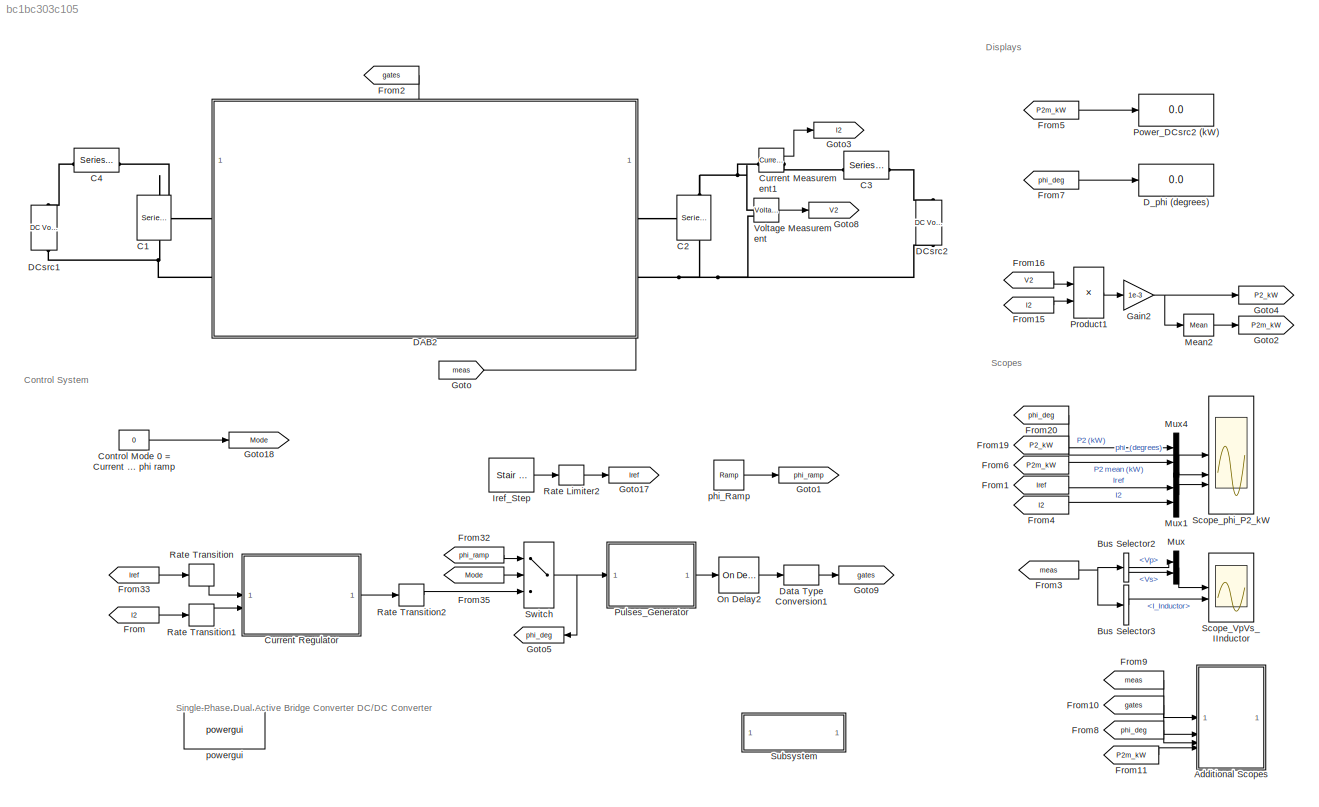
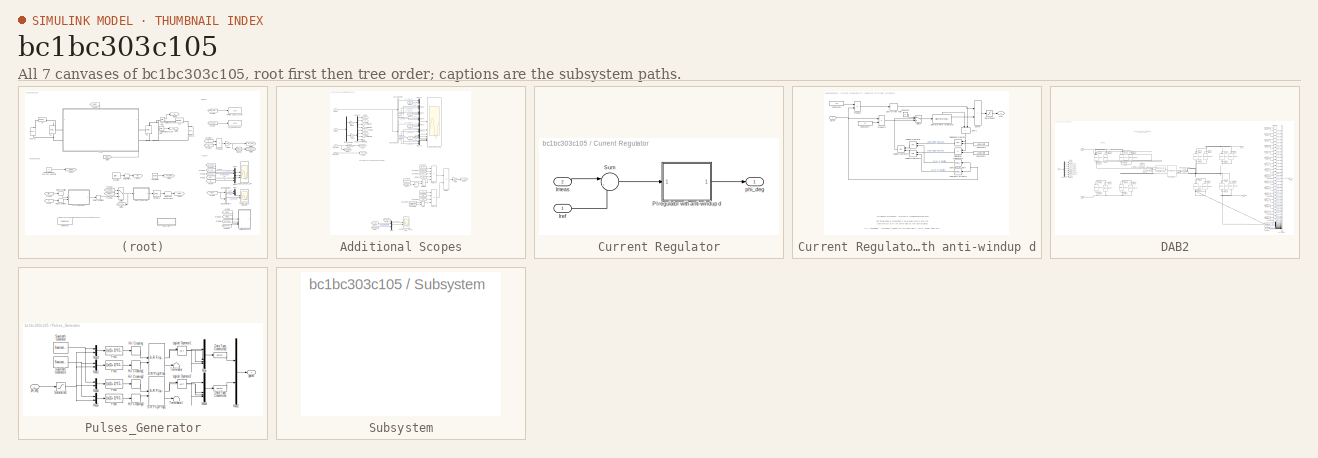
[diagram: thumbnail index - all 7 canvases of the model, root first then tree order]
MODEL slx_bc1bc303c105
KIND model
CONFIG AbsTol = auto
CONFIG EnableMultiTasking = on
CONFIG FixedStep = auto
CONFIG MaxStep = 1e-3
CONFIG MinStep = auto
CONFIG PreLoadFcn = power_converters_DAB_1ph_Data\n
CONFIG RelTol = 1e-3
CONFIG SampleTimeConstraint = Unconstrained
CONFIG SolverName = ode23tb
CONFIG StartTime = 0.0
CONFIG StopTime = 0.04
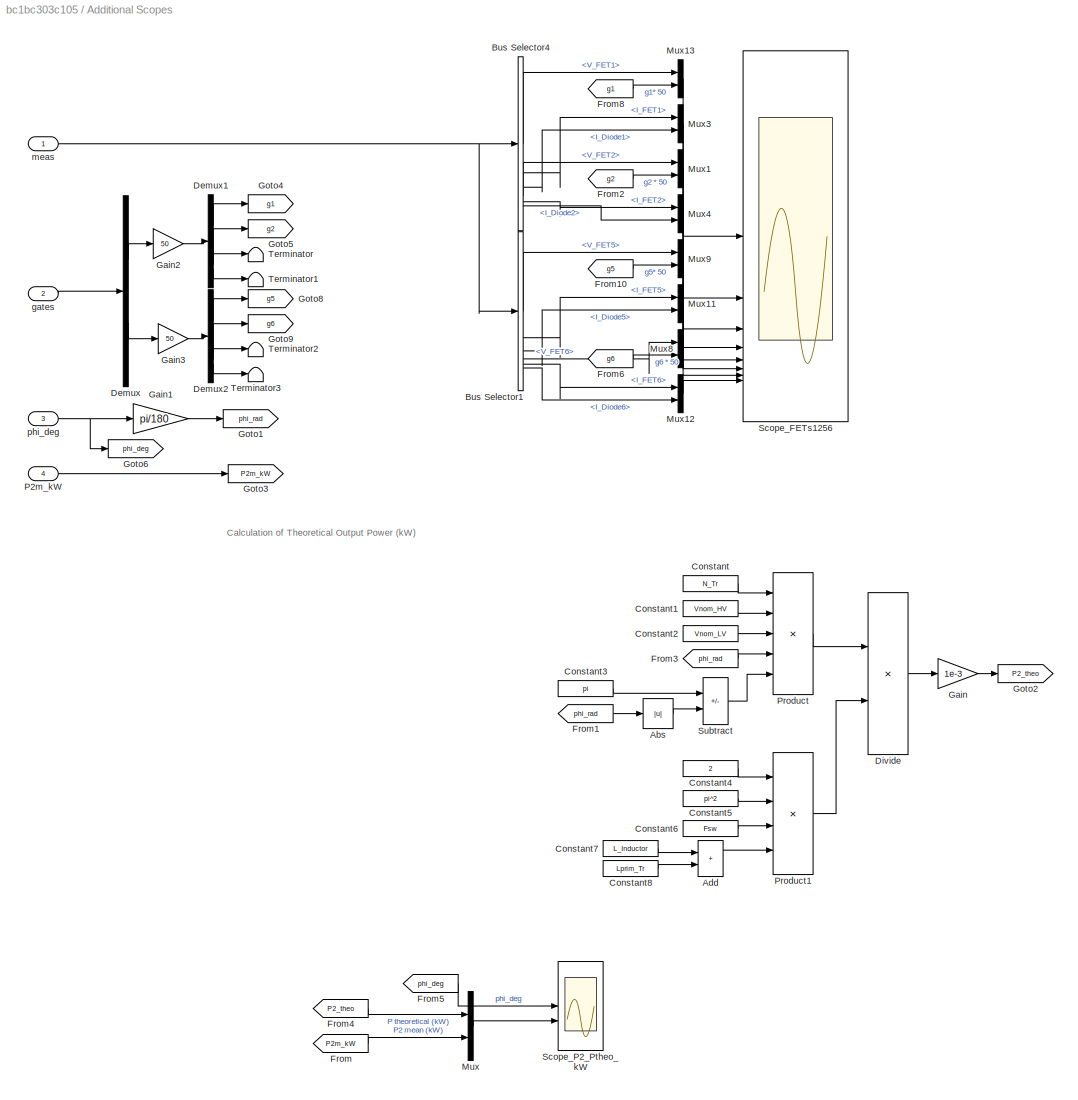
BLOCK [SubSystem] Additional Scopes
BLOCK [Abs] Additional Scopes/Abs
  SaturateOnIntegerOverflow = off
BLOCK [Sum] Additional Scopes/Add
  IconShape = rectangular
BLOCK [BusSelector] Additional Scopes/Bus Selector1
  OutputSignals = V_FET5,I_FET5,I_Diode5,V_FET6,I_FET6,I_Diode6
BLOCK [BusSelector] Additional Scopes/Bus Selector4
  OutputSignals = V_FET1,I_FET1,I_Diode1,V_FET2,I_FET2,I_Diode2
BLOCK [Constant] Additional Scopes/Constant
  Value = N_Tr
BLOCK [Constant] Additional Scopes/Constant1
  Value = Vnom_HV
BLOCK [Constant] Additional Scopes/Constant2
  Value = Vnom_LV
BLOCK [Constant] Additional Scopes/Constant3
  Value = pi
BLOCK [Constant] Additional Scopes/Constant4
  Value = 2
BLOCK [Constant] Additional Scopes/Constant5
  Value = pi^2
BLOCK [Constant] Additional Scopes/Constant6
  Value = Fsw
BLOCK [Constant] Additional Scopes/Constant7
  Value = L_Inductor
BLOCK [Constant] Additional Scopes/Constant8
  Value = Lprim_Tr
BLOCK [Demux] Additional Scopes/Demux
  Outputs = [4,4]
BLOCK [Demux] Additional Scopes/Demux1
BLOCK [Demux] Additional Scopes/Demux2
BLOCK [Product] Additional Scopes/Divide
  Inputs = */
BLOCK [From] Additional Scopes/From
  GotoTag = P2m_kW
BLOCK [From] Additional Scopes/From1
  GotoTag = phi_rad
BLOCK [From] Additional Scopes/From10
  GotoTag = g5
BLOCK [From] Additional Scopes/From2
  GotoTag = g2
BLOCK [From] Additional Scopes/From3
  GotoTag = phi_rad
BLOCK [From] Additional Scopes/From4
  GotoTag = P2_theo
BLOCK [From] Additional Scopes/From5
  GotoTag = phi_deg
BLOCK [From] Additional Scopes/From6
  GotoTag = g6
BLOCK [From] Additional Scopes/From8
  GotoTag = g1
BLOCK [Gain] Additional Scopes/Gain
  Gain = 1e-3
BLOCK [Gain] Additional Scopes/Gain1
  Gain = pi/180
BLOCK [Gain] Additional Scopes/Gain2
  Gain = 50
BLOCK [Gain] Additional Scopes/Gain3
  Gain = 50
BLOCK [Goto] Additional Scopes/Goto1
  GotoTag = phi_rad
BLOCK [Goto] Additional Scopes/Goto2
  GotoTag = P2_theo
BLOCK [Goto] Additional Scopes/Goto3
  GotoTag = P2m_kW
BLOCK [Goto] Additional Scopes/Goto4
  GotoTag = g1
BLOCK [Goto] Additional Scopes/Goto5
  GotoTag = g2
BLOCK [Goto] Additional Scopes/Goto6
  GotoTag = phi_deg
BLOCK [Goto] Additional Scopes/Goto8
  GotoTag = g5
BLOCK [Goto] Additional Scopes/Goto9
  GotoTag = g6
BLOCK [Mux] Additional Scopes/Mux
  DisplayOption = bar
  Inputs = 2
BLOCK [Mux] Additional Scopes/Mux1
  DisplayOption = bar
  Inputs = 2
BLOCK [Mux] Additional Scopes/Mux11
  DisplayOption = bar
  Inputs = 2
BLOCK [Mux] Additional Scopes/Mux12
  DisplayOption = bar
  Inputs = 2
BLOCK [Mux] Additional Scopes/Mux13
  DisplayOption = bar
  Inputs = 2
BLOCK [Mux] Additional Scopes/Mux3
  DisplayOption = bar
  Inputs = 2
BLOCK [Mux] Additional Scopes/Mux4
  DisplayOption = bar
  Inputs = 2
BLOCK [Mux] Additional Scopes/Mux8
  DisplayOption = bar
  Inputs = 2
BLOCK [Mux] Additional Scopes/Mux9
  DisplayOption = bar
  Inputs = 2
BLOCK [Inport] Additional Scopes/P2m_kW
  Port = 4
BLOCK [Product] Additional Scopes/Product
  Inputs = 5
BLOCK [Product] Additional Scopes/Product1
  Inputs = 4
BLOCK [Scope] Additional Scopes/Scope_FETs1256
  Floating = off
  NumInputPorts = 8
  ScopeSpecificationString = Simulink.scopes.TimeScopeBlockCfg('CurrentConfiguration', extmgr.ConfigurationSet(extmgr.Configuration('Core','General UI',true),extmgr.Configuration('Core','Source UI',true),extmgr.Configuration('Sources','WiredSimulink',true,'DataLoggingVariableName','ScopeData_FETs1256','DataLoggingDecimateData',true,'DataLoggingDecimation','Scope_Decimation','DataLoggingSaveFormat','StructureWithTime','DataLog...<+6682ch>
BLOCK [Scope] Additional Scopes/Scope_P2_Ptheo_kW
  Floating = off
  NumInputPorts = 2
  ScopeSpecificationString = Simulink.scopes.TimeScopeBlockCfg('CurrentConfiguration', extmgr.ConfigurationSet(extmgr.Configuration('Core','General UI',true),extmgr.Configuration('Core','Source UI',true),extmgr.Configuration('Sources','WiredSimulink',true,'DataLoggingVariableName','Scope_phi_Ptheo_P2_kW','DataLoggingDecimateData',true,'DataLoggingDecimation','Scope_Decimation','DataLoggingSaveFormat','StructureWithTime','Data...<+2356ch>
BLOCK [Sum] Additional Scopes/Subtract
  IconShape = rectangular
  Inputs = +-
BLOCK [Terminator] Additional Scopes/Terminator
BLOCK [Terminator] Additional Scopes/Terminator1
BLOCK [Terminator] Additional Scopes/Terminator2
BLOCK [Terminator] Additional Scopes/Terminator3
BLOCK [Inport] Additional Scopes/gates
  Port = 2
BLOCK [Inport] Additional Scopes/meas
BLOCK [Inport] Additional Scopes/phi_deg
  Port = 3
BLOCK [BusSelector] Bus Selector2
  OutputSignals = Vp,Vs
BLOCK [BusSelector] Bus Selector3
  OutputSignals = I_Inductor
BLOCK [Reference] C1  REF=spsSeriesRLCBranchLib/Series RLC Branch
  NameLocation = left
  SourceBlock = spsSeriesRLCBranchLib/Series RLC Branch
  SourceType = Series RLC Branch
BLOCK [Reference] C2  REF=spsSeriesRLCBranchLib/Series RLC Branch
  NameLocation = left
  SourceBlock = spsSeriesRLCBranchLib/Series RLC Branch
  SourceType = Series RLC Branch
BLOCK [Reference] C3  REF=spsSeriesRLCBranchLib/Series RLC Branch
  NameLocation = top
  SourceBlock = spsSeriesRLCBranchLib/Series RLC Branch
  SourceType = Series RLC Branch
BLOCK [Reference] C4  REF=spsSeriesRLCBranchLib/Series RLC Branch
  NameLocation = top
  SourceBlock = spsSeriesRLCBranchLib/Series RLC Branch
  SourceType = Series RLC Branch
BLOCK [Constant] Control Mode 0 = Current Regulator 1 = phi ramp
  Value = 0
BLOCK [Reference] Current Measurement1  REF=spsCurrentMeasurementLib/Current Measurement
  SourceBlock = spsCurrentMeasurementLib/Current Measurement
  SourceType = Current Measurement
  UserDataPersistent = on
BLOCK [SubSystem] Current Regulator
BLOCK [Inport] Current Regulator/Imeas
  NameLocation = top
  Port = 2
BLOCK [Inport] Current Regulator/Iref
BLOCK [SubSystem] Current Regulator/PI regulator with anti-windup d
  DialogController = POWERSYS.PowerSysDialog
BLOCK [Reference] Current Regulator/PI regulator with anti-windup d/Compare To Zero  REF=simulink/Logic and Bit
Operations/Compare
To Zero
  SourceBlock = simulink/Logic and Bit\nOperations/Compare\nTo Zero
  SourceType = Compare To Zero
BLOCK [Reference] Current Regulator/PI regulator with anti-windup d/Compare To Zero1  REF=simulink/Logic and Bit
Operations/Compare
To Zero
  SourceBlock = simulink/Logic and Bit\nOperations/Compare\nTo Zero
  SourceType = Compare To Zero
BLOCK [Constant] Current Regulator/PI regulator with anti-windup d/Constant
  Value = 0
BLOCK [Constant] Current Regulator/PI regulator with anti-windup d/Constant1
  Value = UpperLimit
BLOCK [Constant] Current Regulator/PI regulator with anti-windup d/Constant2
  SampleTime = Ts
  Value = Kp
BLOCK [Constant] Current Regulator/PI regulator with anti-windup d/Constant3
  Value = LowerLimit
BLOCK [Constant] Current Regulator/PI regulator with anti-windup d/Constant4
  SampleTime = Ts
  Value = Ki
BLOCK [DiscreteIntegrator] Current Regulator/PI regulator with anti-windup d/Discrete-Time Integrator
  ICPrevOutput = DiscIntNeverNeededParam
  ICPrevScaledInput = DiscIntNeverNeededParam
  InitialCondition = Init
  IntegratorMethod = Integration: Trapezoidal
  LimitOutput = on
  LowerSaturationLimit = LowerLimit
  SampleTime = Ts
  ShowStatePort = on
  UpperSaturationLimit = UpperLimit
BLOCK [Inport] Current Regulator/PI regulator with anti-windup d/Error
  SampleTime = Ts
BLOCK [Logic] Current Regulator/PI regulator with anti-windup d/Logical Operator
  AllPortsSameDT = off
  OutDataTypeStr = boolean
BLOCK [Logic] Current Regulator/PI regulator with anti-windup d/Logical Operator1
  AllPortsSameDT = off
  OutDataTypeStr = boolean
BLOCK [Logic] Current Regulator/PI regulator with anti-windup d/Logical Operator2
  AllPortsSameDT = off
  Operator = OR
  OutDataTypeStr = boolean
BLOCK [Outport] Current Regulator/PI regulator with anti-windup d/Out
  InitialOutput = 0
  SampleTime = Ts
  VectorParamsAs1DForOutWhenUnconnected = off
BLOCK [Product] Current Regulator/PI regulator with anti-windup d/Product
BLOCK [Product] Current Regulator/PI regulator with anti-windup d/Product1
BLOCK [RelationalOperator] Current Regulator/PI regulator with anti-windup d/Relational Operator
  InputSameDT = off
  OutDataTypeStr = boolean
BLOCK [RelationalOperator] Current Regulator/PI regulator with anti-windup d/Relational Operator1
  InputSameDT = off
  Operator = <=
  OutDataTypeStr = boolean
BLOCK [Saturate] Current Regulator/PI regulator with anti-windup d/Saturation2
  LowerLimit = LowerLimit
  NameLocation = top
  SampleTime = Ts
  UpperLimit = UpperLimit
BLOCK [Sum] Current Regulator/PI regulator with anti-windup d/Sum1
  IconShape = rectangular
  InputSameDT = on
  NameLocation = left
  OutDataTypeStr = Inherit: Same as first input
  SampleTime = Ts
  SaturateOnIntegerOverflow = on
BLOCK [Sum] Current Regulator/PI regulator with anti-windup d/Sum6
  IconShape = rectangular
  InputSameDT = on
  OutDataTypeStr = Inherit: Same as first input
  SampleTime = Ts
  SaturateOnIntegerOverflow = on
BLOCK [Switch] Current Regulator/PI regulator with anti-windup d/Switch
  Criteria = u2 > Threshold
  InputSameDT = off
  SaturateOnIntegerOverflow = off
BLOCK [ZeroOrderHold] Current Regulator/PI regulator with anti-windup d/Zero-Order Hold
  SampleTime = Ts
BLOCK [Sum] Current Regulator/Sum
  Inputs = |-+
  NameLocation = top
BLOCK [Outport] Current Regulator/phi_deg
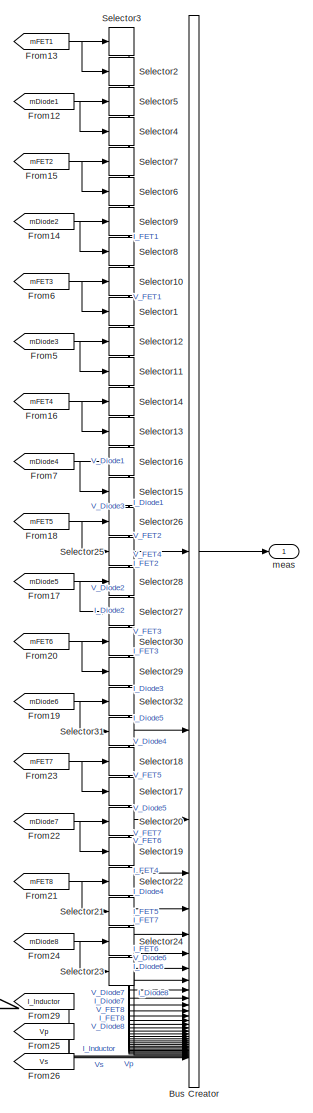
[diagram: DAB2 - part 1/3, right side, full height]
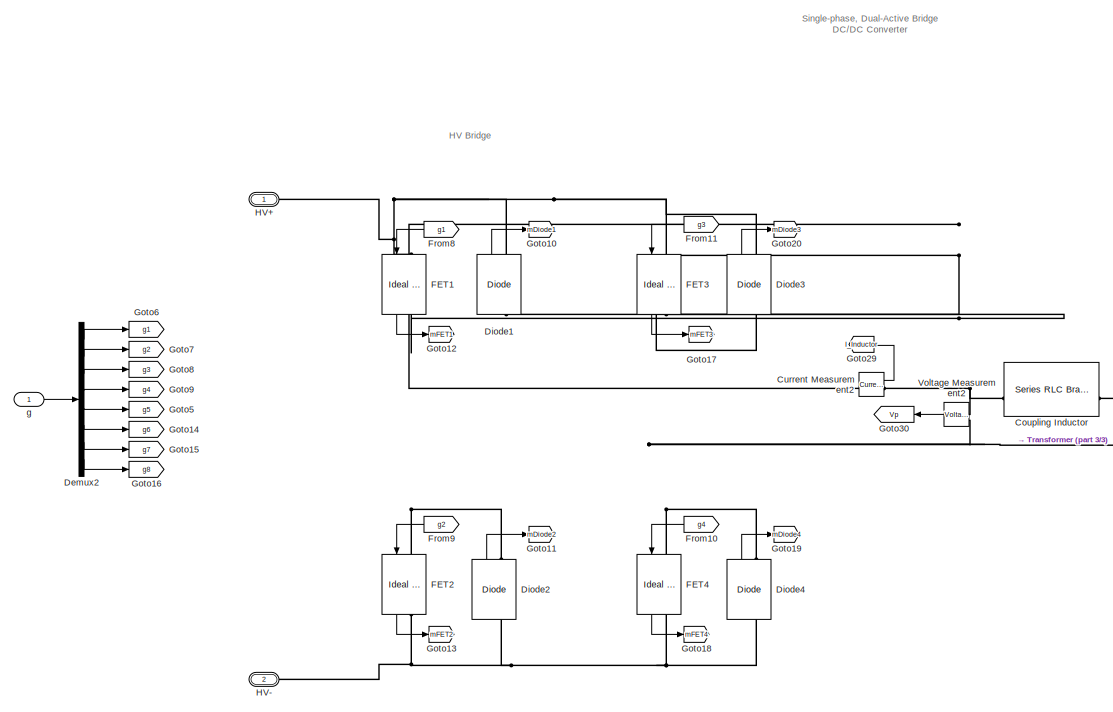
[diagram: DAB2 - part 2/3, middle left region]
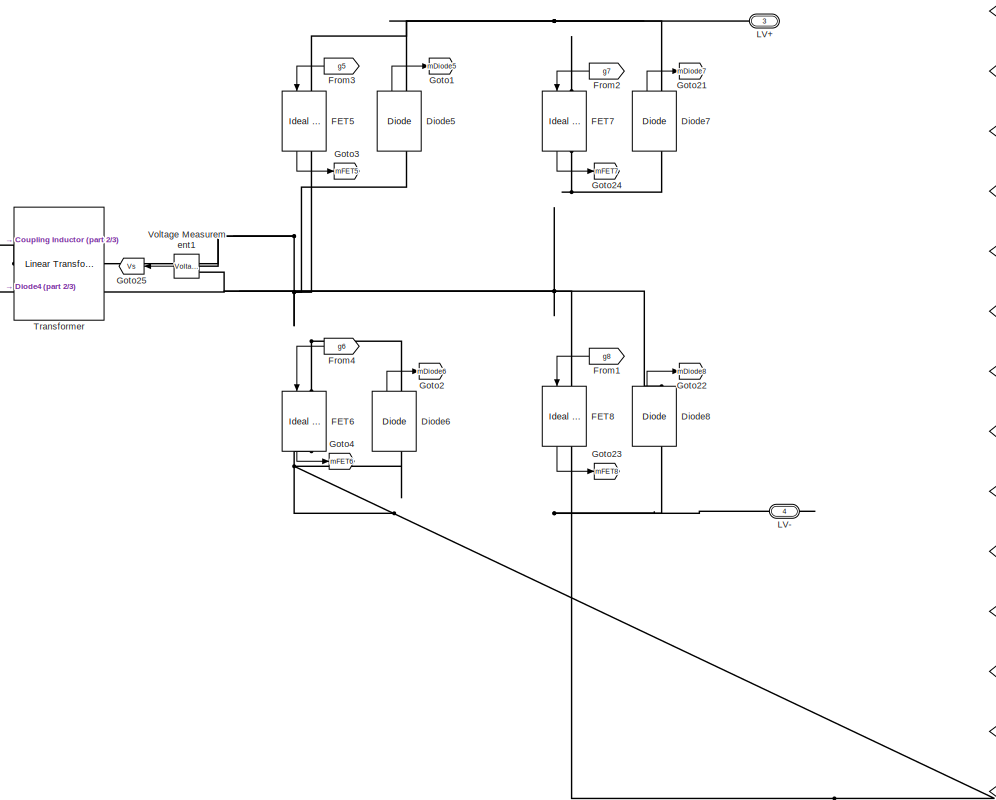
[diagram: DAB2 - part 3/3, middle right region]
BLOCK [SubSystem] DAB2
  NameLocation = left
  PortSchema = {"entries":[{"content":{"sides":[{"content":{"connectorIds":["LConn1","LConn2"]},"type":"ConnectorPlacement.EquallySpacedRectSide","uuid":"9324ea44-499c-4ecb-9e49-362befe9c555"},{"content":{"connectorIds":["RConn1","RConn2"],"side":"RIGHT"},"type":"ConnectorPlacement.EquallySpacedRectSide","uuid":"1d2d188e-4a2f-457a-9d2e-cac68811a3aa"},{"content":{"connectorIds":["In1"],"side":"TOP"},"type":"Conne...<+418ch>
BLOCK [BusCreator] DAB2/Bus Creator
  DisplayOption = bar
  InheritFromInputs = on
  Inputs = 35
BLOCK [Reference] DAB2/Coupling Inductor  REF=spsSeriesRLCBranchLib/Series RLC Branch
  NameLocation = top
  SourceBlock = spsSeriesRLCBranchLib/Series RLC Branch
  SourceType = Series RLC Branch
BLOCK [Reference] DAB2/Current Measurement2  REF=spsCurrentMeasurementLib/Current Measurement
  SourceBlock = spsCurrentMeasurementLib/Current Measurement
  SourceType = Current Measurement
  UserDataPersistent = on
BLOCK [Demux] DAB2/Demux2
  Outputs = 8
BLOCK [Reference] DAB2/Diode1  REF=spsDiodeLib/Diode
  NameLocation = left
  SourceBlock = spsDiodeLib/Diode
  SourceType = Diode
BLOCK [Reference] DAB2/Diode2  REF=spsDiodeLib/Diode
  NameLocation = left
  SourceBlock = spsDiodeLib/Diode
  SourceType = Diode
BLOCK [Reference] DAB2/Diode3  REF=spsDiodeLib/Diode
  NameLocation = left
  SourceBlock = spsDiodeLib/Diode
  SourceType = Diode
BLOCK [Reference] DAB2/Diode4  REF=spsDiodeLib/Diode
  NameLocation = left
  SourceBlock = spsDiodeLib/Diode
  SourceType = Diode
BLOCK [Reference] DAB2/Diode5  REF=spsDiodeLib/Diode
  NameLocation = left
  SourceBlock = spsDiodeLib/Diode
  SourceType = Diode
BLOCK [Reference] DAB2/Diode6  REF=spsDiodeLib/Diode
  NameLocation = left
  SourceBlock = spsDiodeLib/Diode
  SourceType = Diode
BLOCK [Reference] DAB2/Diode7  REF=spsDiodeLib/Diode
  NameLocation = left
  SourceBlock = spsDiodeLib/Diode
  SourceType = Diode
BLOCK [Reference] DAB2/Diode8  REF=spsDiodeLib/Diode
  NameLocation = left
  SourceBlock = spsDiodeLib/Diode
  SourceType = Diode
BLOCK [Reference] DAB2/FET1  REF=spsIdealSwitchLib/Ideal Switch
  NameLocation = left
  SourceBlock = spsIdealSwitchLib/Ideal Switch
  SourceType = Ideal Switch
BLOCK [Reference] DAB2/FET2  REF=spsIdealSwitchLib/Ideal Switch
  NameLocation = left
  SourceBlock = spsIdealSwitchLib/Ideal Switch
  SourceType = Ideal Switch
BLOCK [Reference] DAB2/FET3  REF=spsIdealSwitchLib/Ideal Switch
  NameLocation = left
  SourceBlock = spsIdealSwitchLib/Ideal Switch
  SourceType = Ideal Switch
BLOCK [Reference] DAB2/FET4  REF=spsIdealSwitchLib/Ideal Switch
  NameLocation = left
  SourceBlock = spsIdealSwitchLib/Ideal Switch
  SourceType = Ideal Switch
BLOCK [Reference] DAB2/FET5  REF=spsIdealSwitchLib/Ideal Switch
  NameLocation = left
  SourceBlock = spsIdealSwitchLib/Ideal Switch
  SourceType = Ideal Switch
BLOCK [Reference] DAB2/FET6  REF=spsIdealSwitchLib/Ideal Switch
  NameLocation = left
  SourceBlock = spsIdealSwitchLib/Ideal Switch
  SourceType = Ideal Switch
BLOCK [Reference] DAB2/FET7  REF=spsIdealSwitchLib/Ideal Switch
  NameLocation = left
  SourceBlock = spsIdealSwitchLib/Ideal Switch
  SourceType = Ideal Switch
BLOCK [Reference] DAB2/FET8  REF=spsIdealSwitchLib/Ideal Switch
  NameLocation = left
  SourceBlock = spsIdealSwitchLib/Ideal Switch
  SourceType = Ideal Switch
BLOCK [From] DAB2/From1
  GotoTag = g8
BLOCK [From] DAB2/From10
  GotoTag = g4
BLOCK [From] DAB2/From11
  GotoTag = g3
BLOCK [From] DAB2/From12
  GotoTag = mDiode1
BLOCK [From] DAB2/From13
  GotoTag = mFET1
BLOCK [From] DAB2/From14
  GotoTag = mDiode2
BLOCK [From] DAB2/From15
  GotoTag = mFET2
BLOCK [From] DAB2/From16
  GotoTag = mFET4
BLOCK [From] DAB2/From17
  GotoTag = mDiode5
BLOCK [From] DAB2/From18
  GotoTag = mFET5
BLOCK [From] DAB2/From19
  GotoTag = mDiode6
BLOCK [From] DAB2/From2
  GotoTag = g7
BLOCK [From] DAB2/From20
  GotoTag = mFET6
BLOCK [From] DAB2/From21
  GotoTag = mFET8
BLOCK [From] DAB2/From22
  GotoTag = mDiode7
BLOCK [From] DAB2/From23
  GotoTag = mFET7
BLOCK [From] DAB2/From24
  GotoTag = mDiode8
BLOCK [From] DAB2/From25
  GotoTag = Vp
BLOCK [From] DAB2/From26
  GotoTag = Vs
  NameLocation = top
BLOCK [From] DAB2/From29
  GotoTag = I_Inductor
BLOCK [From] DAB2/From3
  GotoTag = g5
BLOCK [From] DAB2/From4
  GotoTag = g6
BLOCK [From] DAB2/From5
  GotoTag = mDiode3
BLOCK [From] DAB2/From6
  GotoTag = mFET3
BLOCK [From] DAB2/From7
  GotoTag = mDiode4
BLOCK [From] DAB2/From8
  GotoTag = g1
BLOCK [From] DAB2/From9
  GotoTag = g2
BLOCK [Goto] DAB2/Goto1
  GotoTag = mDiode5
BLOCK [Goto] DAB2/Goto10
  GotoTag = mDiode1
BLOCK [Goto] DAB2/Goto11
  GotoTag = mDiode2
BLOCK [Goto] DAB2/Goto12
  GotoTag = mFET1
BLOCK [Goto] DAB2/Goto13
  GotoTag = mFET2
BLOCK [Goto] DAB2/Goto14
  GotoTag = g6
BLOCK [Goto] DAB2/Goto15
  GotoTag = g7
BLOCK [Goto] DAB2/Goto16
  GotoTag = g8
BLOCK [Goto] DAB2/Goto17
  GotoTag = mFET3
BLOCK [Goto] DAB2/Goto18
  GotoTag = mFET4
BLOCK [Goto] DAB2/Goto19
  GotoTag = mDiode4
BLOCK [Goto] DAB2/Goto2
  GotoTag = mDiode6
BLOCK [Goto] DAB2/Goto20
  GotoTag = mDiode3
BLOCK [Goto] DAB2/Goto21
  GotoTag = mDiode7
BLOCK [Goto] DAB2/Goto22
  GotoTag = mDiode8
BLOCK [Goto] DAB2/Goto23
  GotoTag = mFET8
BLOCK [Goto] DAB2/Goto24
  GotoTag = mFET7
BLOCK [Goto] DAB2/Goto25
  GotoTag = Vs
BLOCK [Goto] DAB2/Goto29
  GotoTag = I_Inductor
BLOCK [Goto] DAB2/Goto3
  GotoTag = mFET5
BLOCK [Goto] DAB2/Goto30
  GotoTag = Vp
BLOCK [Goto] DAB2/Goto4
  GotoTag = mFET6
BLOCK [Goto] DAB2/Goto5
  GotoTag = g5
BLOCK [Goto] DAB2/Goto6
  GotoTag = g1
BLOCK [Goto] DAB2/Goto7
  GotoTag = g2
BLOCK [Goto] DAB2/Goto8
  GotoTag = g3
BLOCK [Goto] DAB2/Goto9
  GotoTag = g4
BLOCK [PMIOPort] DAB2/HV+
  Side = Left
BLOCK [PMIOPort] DAB2/HV-
  Port = 2
  Side = Left
BLOCK [PMIOPort] DAB2/LV+
  Port = 3
  Side = Right
BLOCK [PMIOPort] DAB2/LV-
  Port = 4
  Side = Right
BLOCK [Selector] DAB2/Selector1
  IndexOptions = Index vector (dialog)
  Indices = 1
  InputPortWidth = 2
  OutputSizes = 1
BLOCK [Selector] DAB2/Selector10
  IndexOptions = Index vector (dialog)
  Indices = 2
  InputPortWidth = 2
  OutputSizes = 1
BLOCK [Selector] DAB2/Selector11
  IndexOptions = Index vector (dialog)
  Indices = 1
  InputPortWidth = 2
  OutputSizes = 1
BLOCK [Selector] DAB2/Selector12
  IndexOptions = Index vector (dialog)
  Indices = 2
  InputPortWidth = 2
  OutputSizes = 1
BLOCK [Selector] DAB2/Selector13
  IndexOptions = Index vector (dialog)
  Indices = 1
  InputPortWidth = 2
  OutputSizes = 1
BLOCK [Selector] DAB2/Selector14
  IndexOptions = Index vector (dialog)
  Indices = 2
  InputPortWidth = 2
  OutputSizes = 1
BLOCK [Selector] DAB2/Selector15
  IndexOptions = Index vector (dialog)
  Indices = 1
  InputPortWidth = 2
  OutputSizes = 1
BLOCK [Selector] DAB2/Selector16
  IndexOptions = Index vector (dialog)
  Indices = 2
  InputPortWidth = 2
  OutputSizes = 1
BLOCK [Selector] DAB2/Selector17
  IndexOptions = Index vector (dialog)
  Indices = 1
  InputPortWidth = 2
  OutputSizes = 1
BLOCK [Selector] DAB2/Selector18
  IndexOptions = Index vector (dialog)
  Indices = 2
  InputPortWidth = 2
  OutputSizes = 1
BLOCK [Selector] DAB2/Selector19
  IndexOptions = Index vector (dialog)
  Indices = 1
  InputPortWidth = 2
  OutputSizes = 1
BLOCK [Selector] DAB2/Selector2
  IndexOptions = Index vector (dialog)
  Indices = 1
  InputPortWidth = 2
  OutputSizes = 1
BLOCK [Selector] DAB2/Selector20
  IndexOptions = Index vector (dialog)
  Indices = 2
  InputPortWidth = 2
  OutputSizes = 1
BLOCK [Selector] DAB2/Selector21
  IndexOptions = Index vector (dialog)
  Indices = 1
  InputPortWidth = 2
  OutputSizes = 1
BLOCK [Selector] DAB2/Selector22
  IndexOptions = Index vector (dialog)
  Indices = 2
  InputPortWidth = 2
  OutputSizes = 1
BLOCK [Selector] DAB2/Selector23
  IndexOptions = Index vector (dialog)
  Indices = 1
  InputPortWidth = 2
  OutputSizes = 1
BLOCK [Selector] DAB2/Selector24
  IndexOptions = Index vector (dialog)
  Indices = 2
  InputPortWidth = 2
  OutputSizes = 1
BLOCK [Selector] DAB2/Selector25
  IndexOptions = Index vector (dialog)
  Indices = 1
  InputPortWidth = 2
  OutputSizes = 1
BLOCK [Selector] DAB2/Selector26
  IndexOptions = Index vector (dialog)
  Indices = 2
  InputPortWidth = 2
  OutputSizes = 1
BLOCK [Selector] DAB2/Selector27
  IndexOptions = Index vector (dialog)
  Indices = 1
  InputPortWidth = 2
  OutputSizes = 1
BLOCK [Selector] DAB2/Selector28
  IndexOptions = Index vector (dialog)
  Indices = 2
  InputPortWidth = 2
  OutputSizes = 1
BLOCK [Selector] DAB2/Selector29
  IndexOptions = Index vector (dialog)
  Indices = 1
  InputPortWidth = 2
  OutputSizes = 1
BLOCK [Selector] DAB2/Selector3
  IndexOptions = Index vector (dialog)
  Indices = 2
  InputPortWidth = 2
  OutputSizes = 1
BLOCK [Selector] DAB2/Selector30
  IndexOptions = Index vector (dialog)
  Indices = 2
  InputPortWidth = 2
  OutputSizes = 1
BLOCK [Selector] DAB2/Selector31
  IndexOptions = Index vector (dialog)
  Indices = 1
  InputPortWidth = 2
  OutputSizes = 1
BLOCK [Selector] DAB2/Selector32
  IndexOptions = Index vector (dialog)
  Indices = 2
  InputPortWidth = 2
  OutputSizes = 1
BLOCK [Selector] DAB2/Selector4
  IndexOptions = Index vector (dialog)
  Indices = 1
  InputPortWidth = 2
  OutputSizes = 1
BLOCK [Selector] DAB2/Selector5
  IndexOptions = Index vector (dialog)
  Indices = 2
  InputPortWidth = 2
  OutputSizes = 1
BLOCK [Selector] DAB2/Selector6
  IndexOptions = Index vector (dialog)
  Indices = 1
  InputPortWidth = 2
  OutputSizes = 1
BLOCK [Selector] DAB2/Selector7
  IndexOptions = Index vector (dialog)
  Indices = 2
  InputPortWidth = 2
  OutputSizes = 1
BLOCK [Selector] DAB2/Selector8
  IndexOptions = Index vector (dialog)
  Indices = 1
  InputPortWidth = 2
  OutputSizes = 1
BLOCK [Selector] DAB2/Selector9
  IndexOptions = Index vector (dialog)
  Indices = 2
  InputPortWidth = 2
  OutputSizes = 1
BLOCK [Reference] DAB2/Transformer  REF=spsLinearTransformerLib/Linear Transformer
  NameLocation = top
  SourceBlock = spsLinearTransformerLib/Linear Transformer
  SourceType = Linear Transformer
BLOCK [Reference] DAB2/Voltage Measurement1  REF=spsVoltageMeasurementLib/Voltage Measurement
  SourceBlock = spsVoltageMeasurementLib/Voltage Measurement
  SourceType = Voltage Measurement
  UserDataPersistent = on
BLOCK [Reference] DAB2/Voltage Measurement2  REF=spsVoltageMeasurementLib/Voltage Measurement
  SourceBlock = spsVoltageMeasurementLib/Voltage Measurement
  SourceType = Voltage Measurement
  UserDataPersistent = on
BLOCK [Inport] DAB2/g
  PortDimensions = 8
BLOCK [Outport] DAB2/meas
  PortDimensions = 35
BLOCK [Reference] DCsrc1  REF=spsDCVoltageSourceLib/DC Voltage Source
  NameLocation = left
  SourceBlock = spsDCVoltageSourceLib/DC Voltage Source
  SourceType = DC Voltage Source
BLOCK [Reference] DCsrc2  REF=spsDCVoltageSourceLib/DC Voltage Source
  NameLocation = right
  SourceBlock = spsDCVoltageSourceLib/DC Voltage Source
  SourceType = DC Voltage Source
BLOCK [Display] D_phi (degrees)
  Decimation = 100
  Format = bank
BLOCK [DataTypeConversion] Data Type Conversion1
  OutDataTypeStr = double
  RndMeth = Floor
  SaturateOnIntegerOverflow = off
BLOCK [From] From
  GotoTag = I2
BLOCK [From] From1
  GotoTag = Iref
BLOCK [From] From10
  GotoTag = gates
BLOCK [From] From11
  GotoTag = P2m_kW
BLOCK [From] From15
  GotoTag = I2
BLOCK [From] From16
  GotoTag = V2
BLOCK [From] From19
  GotoTag = P2_kW
BLOCK [From] From2
  GotoTag = gates
BLOCK [From] From20
  GotoTag = phi_deg
BLOCK [From] From3
  GotoTag = meas
BLOCK [From] From32
  GotoTag = phi_ramp
BLOCK [From] From33
  GotoTag = Iref
BLOCK [From] From35
  GotoTag = Mode
BLOCK [From] From4
  GotoTag = I2
BLOCK [From] From5
  GotoTag = P2m_kW
BLOCK [From] From6
  GotoTag = P2m_kW
BLOCK [From] From7
  GotoTag = phi_deg
BLOCK [From] From8
  GotoTag = phi_deg
BLOCK [From] From9
  GotoTag = meas
BLOCK [Gain] Gain2
  Gain = 1e-3
BLOCK [Goto] Goto
  GotoTag = meas
BLOCK [Goto] Goto1
  GotoTag = phi_ramp
BLOCK [Goto] Goto17
  GotoTag = Iref
BLOCK [Goto] Goto18
  GotoTag = Mode
BLOCK [Goto] Goto2
  GotoTag = P2m_kW
BLOCK [Goto] Goto3
  GotoTag = I2
BLOCK [Goto] Goto4
  GotoTag = P2_kW
BLOCK [Goto] Goto5
  GotoTag = phi_deg
BLOCK [Goto] Goto8
  GotoTag = V2
BLOCK [Goto] Goto9
  GotoTag = gates
BLOCK [Reference] Iref_Step  REF=spsStairGeneratorLib/Stair
Generator
  SourceBlock = spsStairGeneratorLib/Stair\nGenerator
  SourceType = Stair Generator
BLOCK [Reference] Mean2  REF=spsMeanLib/Mean
  SourceBlock = spsMeanLib/Mean
  SourceType = Mean
BLOCK [Mux] Mux
  DisplayOption = bar
  Inputs = 2
BLOCK [Mux] Mux1
  DisplayOption = bar
  Inputs = 2
BLOCK [Mux] Mux4
  DisplayOption = bar
  Inputs = 2
BLOCK [Reference] On Delay2  REF=spsOnDelayLib/On Delay
  SourceBlock = spsOnDelayLib/On Delay
  SourceType = On/Off Delay
BLOCK [Display] Power_DCsrc2 (kW)
  Decimation = 100
  Format = bank
BLOCK [Product] Product1
BLOCK [SubSystem] Pulses_Generator
BLOCK [DataTypeConversion] Pulses_Generator/Data Type Conversion1
  OutDataTypeStr = double
  RndMeth = Floor
  SaturateOnIntegerOverflow = off
BLOCK [DataTypeConversion] Pulses_Generator/Data Type Conversion2
  OutDataTypeStr = double
  RndMeth = Floor
  SaturateOnIntegerOverflow = off
BLOCK [Fcn] Pulses_Generator/Fcn1
  Expr = ((u(1)+1)*0.5) - (0.5-u(2)/720)
BLOCK [Fcn] Pulses_Generator/Fcn2
  Expr = ((u(1)+1)*0.5) - (0.5-u(2)/720)
BLOCK [Fcn] Pulses_Generator/Fcn5
  Expr = ((u(1)+1)*0.5) - (0.5+u(2)/720)
BLOCK [Fcn] Pulses_Generator/Fcn6
  Expr = ((u(1)+1)*0.5) - (0.5+u(2)/720)
BLOCK [HitCross] Pulses_Generator/Hit Crossing
  HitCrossingDirection = rising
BLOCK [HitCross] Pulses_Generator/Hit Crossing1
  HitCrossingDirection = rising
BLOCK [HitCross] Pulses_Generator/Hit Crossing2
  HitCrossingDirection = rising
BLOCK [HitCross] Pulses_Generator/Hit Crossing3
  HitCrossingDirection = rising
BLOCK [Logic] Pulses_Generator/Logical Operator1
  AllPortsSameDT = off
  Operator = NOT
  OutDataTypeStr = boolean
BLOCK [Logic] Pulses_Generator/Logical Operator2
  AllPortsSameDT = off
  Operator = NOT
  OutDataTypeStr = boolean
BLOCK [Mux] Pulses_Generator/Mux
  DisplayOption = bar
BLOCK [Mux] Pulses_Generator/Mux1
  DisplayOption = bar
  Inputs = 2
BLOCK [Mux] Pulses_Generator/Mux2
  DisplayOption = bar
  Inputs = [4,4]
BLOCK [Mux] Pulses_Generator/Mux3
  DisplayOption = bar
  Inputs = 2
BLOCK [Mux] Pulses_Generator/Mux4
  DisplayOption = bar
BLOCK [Mux] Pulses_Generator/Mux5
  DisplayOption = bar
  Inputs = 2
BLOCK [Mux] Pulses_Generator/Mux6
  DisplayOption = bar
  Inputs = 2
BLOCK [Reference] Pulses_Generator/S-R Flip-Flop  REF=simulink_extras/Flip Flops/S-R
Flip-Flop
  SourceBlock = simulink_extras/Flip Flops/S-R\nFlip-Flop
  SourceType = SRFlipFlop
BLOCK [Reference] Pulses_Generator/S-R Flip-Flop1  REF=simulink_extras/Flip Flops/S-R
Flip-Flop
  SourceBlock = simulink_extras/Flip Flops/S-R\nFlip-Flop
  SourceType = SRFlipFlop
BLOCK [Saturate] Pulses_Generator/Saturation1
  LowerLimit = -180
  UpperLimit = 180
BLOCK [Reference] Pulses_Generator/Sawtooth Generator  REF=spsSawtoothGeneratorLib/Sawtooth
Generator
  SourceBlock = spsSawtoothGeneratorLib/Sawtooth\nGenerator
  SourceType = Sawtooth Generator
BLOCK [Reference] Pulses_Generator/Sawtooth Generator1  REF=spsSawtoothGeneratorLib/Sawtooth
Generator
  SourceBlock = spsSawtoothGeneratorLib/Sawtooth\nGenerator
  SourceType = Sawtooth Generator
BLOCK [Terminator] Pulses_Generator/Terminator
BLOCK [Terminator] Pulses_Generator/Terminator1
BLOCK [Outport] Pulses_Generator/gates
BLOCK [Inport] Pulses_Generator/phi_deg
BLOCK [RateLimiter] Rate Limiter2
  FallingSlewLimit = -3000
  RisingSlewLimit = 3000
  SampleTimeMode = inherited
BLOCK [RateTransition] Rate Transition
  OutPortSampleTime = Ts_Control
BLOCK [RateTransition] Rate Transition1
  OutPortSampleTime = Ts_Control
BLOCK [RateTransition] Rate Transition2
  OutPortSampleTime = 0
BLOCK [Scope] Scope_VpVs_IInductor
  Floating = off
  NumInputPorts = 2
  ScopeSpecificationString = Simulink.scopes.TimeScopeBlockCfg('CurrentConfiguration', extmgr.ConfigurationSet(extmgr.Configuration('Core','General UI',true),extmgr.Configuration('Core','Source UI',true),extmgr.Configuration('Sources','WiredSimulink',true,'DataLoggingVariableName','Scope_VpVs_IInductor','DataLoggingDecimateData',true,'DataLoggingDecimation','Scope_Decimation','DataLoggingSaveFormat','StructureWithTime','DataL...<+2311ch>
BLOCK [Scope] Scope_phi_P2_kW
  Floating = off
  NumInputPorts = 3
  ScopeSpecificationString = Simulink.scopes.TimeScopeBlockCfg('CurrentConfiguration', extmgr.ConfigurationSet(extmgr.Configuration('Core','General UI',true),extmgr.Configuration('Core','Source UI',true),extmgr.Configuration('Sources','WiredSimulink',true,'DataLoggingVariableName','ScopeData_phi_P2_kW','DataLoggingDecimateData',true,'DataLoggingDecimation','Scope_Decimation','DataLoggingSaveFormat','StructureWithTime','DataLo...<+2951ch>
BLOCK [SubSystem] Subsystem
  OpenFcn = open('power_converters_DAB_1ph_Data')
BLOCK [Switch] Switch
  Criteria = u2 ~= 0
  InputSameDT = off
  SaturateOnIntegerOverflow = off
BLOCK [Reference] Voltage Measurement  REF=spsVoltageMeasurementLib/Voltage Measurement
  SourceBlock = spsVoltageMeasurementLib/Voltage Measurement
  SourceType = Voltage Measurement
  UserDataPersistent = on
BLOCK [Reference] phi_Ramp  REF=simulink/Sources/Ramp
  SourceBlock = simulink/Sources/Ramp
  SourceType = Ramp
BLOCK [Reference] powergui  REF=spspowerguiLib/powergui
  Priority = 1
  SourceBlock = spspowerguiLib/powergui
  SourceType = PSB option menu block
ANNOTATION (root): Single-Phase Dual Active Bridge Converter DC/DC Converter
ANNOTATION (root): Control System
ANNOTATION (root): Displays
ANNOTATION (root): Scopes
ANNOTATION Additional Scopes: Calculation of Theoretical Output Power (kW)
ANNOTATION Current Regulator/PI regulator with anti-windup d: Anti-windup mechanism: Method of conditionnal integration The integration is suspended if saturation occurs and the control error is of the same sign as the control signal. [1] L.Rundqwist, "Anti-Reset Windup for PID Controllers," Ph.D. Thesis TRFT-1033, Departement of Automatic Control, Lund Institute of Technology, Lund, Sweeden, 1991.
ANNOTATION DAB2: Single-phase, Dual-Active Bridge DC/DC Converter
ANNOTATION DAB2: HV Bridge
LINE Additional Scopes/Abs:1 -> Additional Scopes/Subtract:2
LINE Additional Scopes/Add:1 -> Additional Scopes/Product1:4
LINE Additional Scopes/Bus Selector1:1 -> Additional Scopes/Mux9:1
LINE Additional Scopes/Bus Selector1:2 -> Additional Scopes/Mux11:1
LINE Additional Scopes/Bus Selector1:3 -> Additional Scopes/Mux11:2
LINE Additional Scopes/Bus Selector1:4 -> Additional Scopes/Mux8:1
LINE Additional Scopes/Bus Selector1:5 -> Additional Scopes/Mux12:1
LINE Additional Scopes/Bus Selector1:6 -> Additional Scopes/Mux12:2
LINE Additional Scopes/Bus Selector4:1 -> Additional Scopes/Mux13:1
LINE Additional Scopes/Bus Selector4:2 -> Additional Scopes/Mux3:1
LINE Additional Scopes/Bus Selector4:3 -> Additional Scopes/Mux3:2
LINE Additional Scopes/Bus Selector4:4 -> Additional Scopes/Mux1:1
LINE Additional Scopes/Bus Selector4:5 -> Additional Scopes/Mux4:1
LINE Additional Scopes/Bus Selector4:6 -> Additional Scopes/Mux4:2
LINE Additional Scopes/Constant1:1 -> Additional Scopes/Product:2
LINE Additional Scopes/Constant2:1 -> Additional Scopes/Product:3
LINE Additional Scopes/Constant3:1 -> Additional Scopes/Subtract:1
LINE Additional Scopes/Constant4:1 -> Additional Scopes/Product1:1
LINE Additional Scopes/Constant5:1 -> Additional Scopes/Product1:2
LINE Additional Scopes/Constant6:1 -> Additional Scopes/Product1:3
LINE Additional Scopes/Constant7:1 -> Additional Scopes/Add:1
LINE Additional Scopes/Constant8:1 -> Additional Scopes/Add:2
LINE Additional Scopes/Constant:1 -> Additional Scopes/Product:1
LINE Additional Scopes/Demux1:1 -> Additional Scopes/Goto4:1
LINE Additional Scopes/Demux1:2 -> Additional Scopes/Goto5:1
LINE Additional Scopes/Demux1:3 -> Additional Scopes/Terminator:1
LINE Additional Scopes/Demux1:4 -> Additional Scopes/Terminator1:1
LINE Additional Scopes/Demux2:1 -> Additional Scopes/Goto8:1
LINE Additional Scopes/Demux2:2 -> Additional Scopes/Goto9:1
LINE Additional Scopes/Demux2:3 -> Additional Scopes/Terminator2:1
LINE Additional Scopes/Demux2:4 -> Additional Scopes/Terminator3:1
LINE Additional Scopes/Demux:1 -> Additional Scopes/Gain2:1
LINE Additional Scopes/Demux:2 -> Additional Scopes/Gain3:1
LINE Additional Scopes/Divide:1 -> Additional Scopes/Gain:1
LINE Additional Scopes/From10:1 -> Additional Scopes/Mux9:2
LINE Additional Scopes/From1:1 -> Additional Scopes/Abs:1
LINE Additional Scopes/From2:1 -> Additional Scopes/Mux1:2
LINE Additional Scopes/From3:1 -> Additional Scopes/Product:4
LINE Additional Scopes/From4:1 -> Additional Scopes/Mux:1
LINE Additional Scopes/From5:1 -> Additional Scopes/Scope_P2_Ptheo_kW:1
LINE Additional Scopes/From6:1 -> Additional Scopes/Mux8:2
LINE Additional Scopes/From8:1 -> Additional Scopes/Mux13:2
LINE Additional Scopes/From:1 -> Additional Scopes/Mux:2
LINE Additional Scopes/Gain1:1 -> Additional Scopes/Goto1:1
LINE Additional Scopes/Gain2:1 -> Additional Scopes/Demux1:1
LINE Additional Scopes/Gain3:1 -> Additional Scopes/Demux2:1
LINE Additional Scopes/Gain:1 -> Additional Scopes/Goto2:1
LINE Additional Scopes/Mux11:1 -> Additional Scopes/Scope_FETs1256:6
LINE Additional Scopes/Mux12:1 -> Additional Scopes/Scope_FETs1256:8
LINE Additional Scopes/Mux13:1 -> Additional Scopes/Scope_FETs1256:1
LINE Additional Scopes/Mux1:1 -> Additional Scopes/Scope_FETs1256:3
LINE Additional Scopes/Mux3:1 -> Additional Scopes/Scope_FETs1256:2
LINE Additional Scopes/Mux4:1 -> Additional Scopes/Scope_FETs1256:4
LINE Additional Scopes/Mux8:1 -> Additional Scopes/Scope_FETs1256:7
LINE Additional Scopes/Mux9:1 -> Additional Scopes/Scope_FETs1256:5
LINE Additional Scopes/Mux:1 -> Additional Scopes/Scope_P2_Ptheo_kW:2
LINE Additional Scopes/P2m_kW:1 -> Additional Scopes/Goto3:1
LINE Additional Scopes/Product1:1 -> Additional Scopes/Divide:2
LINE Additional Scopes/Product:1 -> Additional Scopes/Divide:1
LINE Additional Scopes/Subtract:1 -> Additional Scopes/Product:5
LINE Additional Scopes/gates:1 -> Additional Scopes/Demux:1
NET Additional Scopes/meas:1 -> Additional Scopes/Bus Selector1:1, Additional Scopes/Bus Selector4:1
NET Additional Scopes/phi_deg:1 -> Additional Scopes/Gain1:1, Additional Scopes/Goto6:1
LINE Bus Selector2:1 -> Mux:1
LINE Bus Selector2:2 -> Mux:2
LINE Bus Selector3:1 -> Scope_VpVs_IInductor:2
LINE Control Mode 0 = Current Regulator 1 = phi ramp:1 -> Goto18:1
LINE Current Measurement1:1 -> Goto3:1
LINE Current Regulator/Imeas:1 -> Current Regulator/Sum:1
LINE Current Regulator/Iref:1 -> Current Regulator/Sum:2
LINE Current Regulator/PI regulator with anti-windup d:1 -> Current Regulator/phi_deg:1
LINE Current Regulator/Sum:1 -> Current Regulator/PI regulator with anti-windup d:1
LINE Current Regulator:1 -> Rate Transition2:1
LINE DAB2/Bus Creator:1 -> DAB2/meas:1
LINE DAB2/Current Measurement2:1 -> DAB2/Goto29:1
LINE DAB2/Demux2:1 -> DAB2/Goto6:1
LINE DAB2/Demux2:2 -> DAB2/Goto7:1
LINE DAB2/Demux2:3 -> DAB2/Goto8:1
LINE DAB2/Demux2:4 -> DAB2/Goto9:1
LINE DAB2/Demux2:5 -> DAB2/Goto5:1
LINE DAB2/Demux2:6 -> DAB2/Goto14:1
LINE DAB2/Demux2:7 -> DAB2/Goto15:1
LINE DAB2/Demux2:8 -> DAB2/Goto16:1
LINE DAB2/Diode1:1 -> DAB2/Goto10:1
LINE DAB2/Diode2:1 -> DAB2/Goto11:1
LINE DAB2/Diode3:1 -> DAB2/Goto20:1
LINE DAB2/Diode4:1 -> DAB2/Goto19:1
LINE DAB2/Diode5:1 -> DAB2/Goto1:1
LINE DAB2/Diode6:1 -> DAB2/Goto2:1
LINE DAB2/Diode7:1 -> DAB2/Goto21:1
LINE DAB2/Diode8:1 -> DAB2/Goto22:1
LINE DAB2/FET1:1 -> DAB2/Goto12:1
LINE DAB2/FET2:1 -> DAB2/Goto13:1
LINE DAB2/FET3:1 -> DAB2/Goto17:1
LINE DAB2/FET4:1 -> DAB2/Goto18:1
LINE DAB2/FET5:1 -> DAB2/Goto3:1
LINE DAB2/FET6:1 -> DAB2/Goto4:1
LINE DAB2/FET7:1 -> DAB2/Goto24:1
LINE DAB2/FET8:1 -> DAB2/Goto23:1
LINE DAB2/From10:1 -> DAB2/FET4:1
LINE DAB2/From11:1 -> DAB2/FET3:1
NET DAB2/From12:1 -> DAB2/Selector4:1, DAB2/Selector5:1
NET DAB2/From13:1 -> DAB2/Selector2:1, DAB2/Selector3:1
NET DAB2/From14:1 -> DAB2/Selector8:1, DAB2/Selector9:1
NET DAB2/From15:1 -> DAB2/Selector6:1, DAB2/Selector7:1
NET DAB2/From16:1 -> DAB2/Selector13:1, DAB2/Selector14:1
NET DAB2/From17:1 -> DAB2/Selector27:1, DAB2/Selector28:1
NET DAB2/From18:1 -> DAB2/Selector25:1, DAB2/Selector26:1
NET DAB2/From19:1 -> DAB2/Selector31:1, DAB2/Selector32:1
LINE DAB2/From1:1 -> DAB2/FET8:1
NET DAB2/From20:1 -> DAB2/Selector29:1, DAB2/Selector30:1
NET DAB2/From21:1 -> DAB2/Selector21:1, DAB2/Selector22:1
NET DAB2/From22:1 -> DAB2/Selector19:1, DAB2/Selector20:1
NET DAB2/From23:1 -> DAB2/Selector17:1, DAB2/Selector18:1
NET DAB2/From24:1 -> DAB2/Selector23:1, DAB2/Selector24:1
LINE DAB2/From25:1 -> DAB2/Bus Creator:34
LINE DAB2/From26:1 -> DAB2/Bus Creator:35
LINE DAB2/From29:1 -> DAB2/Bus Creator:33
LINE DAB2/From2:1 -> DAB2/FET7:1
LINE DAB2/From3:1 -> DAB2/FET5:1
LINE DAB2/From4:1 -> DAB2/FET6:1
NET DAB2/From5:1 -> DAB2/Selector11:1, DAB2/Selector12:1
NET DAB2/From6:1 -> DAB2/Selector10:1, DAB2/Selector1:1
NET DAB2/From7:1 -> DAB2/Selector15:1, DAB2/Selector16:1
LINE DAB2/From8:1 -> DAB2/FET1:1
LINE DAB2/From9:1 -> DAB2/FET2:1
LINE DAB2/Selector10:1 -> DAB2/Bus Creator:9
LINE DAB2/Selector11:1 -> DAB2/Bus Creator:12
LINE DAB2/Selector12:1 -> DAB2/Bus Creator:11
LINE DAB2/Selector13:1 -> DAB2/Bus Creator:14
LINE DAB2/Selector14:1 -> DAB2/Bus Creator:13
LINE DAB2/Selector15:1 -> DAB2/Bus Creator:16
LINE DAB2/Selector16:1 -> DAB2/Bus Creator:15
LINE DAB2/Selector17:1 -> DAB2/Bus Creator:26
LINE DAB2/Selector18:1 -> DAB2/Bus Creator:25
LINE DAB2/Selector19:1 -> DAB2/Bus Creator:28
LINE DAB2/Selector1:1 -> DAB2/Bus Creator:10
LINE DAB2/Selector20:1 -> DAB2/Bus Creator:27
LINE DAB2/Selector21:1 -> DAB2/Bus Creator:30
LINE DAB2/Selector22:1 -> DAB2/Bus Creator:29
LINE DAB2/Selector23:1 -> DAB2/Bus Creator:32
LINE DAB2/Selector24:1 -> DAB2/Bus Creator:31
LINE DAB2/Selector25:1 -> DAB2/Bus Creator:18
LINE DAB2/Selector26:1 -> DAB2/Bus Creator:17
LINE DAB2/Selector27:1 -> DAB2/Bus Creator:20
LINE DAB2/Selector28:1 -> DAB2/Bus Creator:19
LINE DAB2/Selector29:1 -> DAB2/Bus Creator:22
LINE DAB2/Selector2:1 -> DAB2/Bus Creator:2
LINE DAB2/Selector30:1 -> DAB2/Bus Creator:21
LINE DAB2/Selector31:1 -> DAB2/Bus Creator:24
LINE DAB2/Selector32:1 -> DAB2/Bus Creator:23
LINE DAB2/Selector3:1 -> DAB2/Bus Creator:1
LINE DAB2/Selector4:1 -> DAB2/Bus Creator:4
LINE DAB2/Selector5:1 -> DAB2/Bus Creator:3
LINE DAB2/Selector6:1 -> DAB2/Bus Creator:6
LINE DAB2/Selector7:1 -> DAB2/Bus Creator:5
LINE DAB2/Selector8:1 -> DAB2/Bus Creator:8
LINE DAB2/Selector9:1 -> DAB2/Bus Creator:7
LINE DAB2/Voltage Measurement1:1 -> DAB2/Goto25:1
LINE DAB2/Voltage Measurement2:1 -> DAB2/Goto30:1
LINE DAB2/g:1 -> DAB2/Demux2:1
LINE DAB2:1 -> Goto:1
LINE Data Type Conversion1:1 -> Goto9:1
LINE From10:1 -> Additional Scopes:2
LINE From11:1 -> Additional Scopes:4
LINE From15:1 -> Product1:2
LINE From16:1 -> Product1:1
LINE From19:1 -> Mux4:1
LINE From1:1 -> Mux1:1
LINE From20:1 -> Scope_phi_P2_kW:1
LINE From2:1 -> DAB2:1
LINE From32:1 -> Switch:1
LINE From33:1 -> Rate Transition:1
LINE From35:1 -> Switch:2
NET From3:1 -> Bus Selector2:1, Bus Selector3:1
LINE From4:1 -> Mux1:2
LINE From5:1 -> Power_DCsrc2 (kW):1
LINE From6:1 -> Mux4:2
LINE From7:1 -> D_phi (degrees):1
LINE From8:1 -> Additional Scopes:3
LINE From9:1 -> Additional Scopes:1
LINE From:1 -> Rate Transition1:1
NET Gain2:1 -> Goto4:1, Mean2:1
LINE Iref_Step:1 -> Rate Limiter2:1
LINE Mean2:1 -> Goto2:1
LINE Mux1:1 -> Scope_phi_P2_kW:3
LINE Mux4:1 -> Scope_phi_P2_kW:2
LINE Mux:1 -> Scope_VpVs_IInductor:1
LINE On Delay2:1 -> Data Type Conversion1:1
LINE Product1:1 -> Gain2:1
LINE Pulses_Generator/Data Type Conversion1:1 -> Pulses_Generator/Mux2:2
LINE Pulses_Generator/Data Type Conversion2:1 -> Pulses_Generator/Mux2:1
LINE Pulses_Generator/Fcn1:1 -> Pulses_Generator/Hit Crossing:1
LINE Pulses_Generator/Fcn2:1 -> Pulses_Generator/Hit Crossing1:1
LINE Pulses_Generator/Fcn5:1 -> Pulses_Generator/Hit Crossing2:1
LINE Pulses_Generator/Fcn6:1 -> Pulses_Generator/Hit Crossing3:1
LINE Pulses_Generator/Hit Crossing1:1 -> Pulses_Generator/S-R Flip-Flop:2
LINE Pulses_Generator/Hit Crossing2:1 -> Pulses_Generator/S-R Flip-Flop1:1
LINE Pulses_Generator/Hit Crossing3:1 -> Pulses_Generator/S-R Flip-Flop1:2
LINE Pulses_Generator/Hit Crossing:1 -> Pulses_Generator/S-R Flip-Flop:1
NET Pulses_Generator/Logical Operator1:1 -> Pulses_Generator/Mux:2, Pulses_Generator/Mux:3
NET Pulses_Generator/Logical Operator2:1 -> Pulses_Generator/Mux4:2, Pulses_Generator/Mux4:3
LINE Pulses_Generator/Mux1:1 -> Pulses_Generator/Fcn2:1
LINE Pulses_Generator/Mux2:1 -> Pulses_Generator/gates:1
LINE Pulses_Generator/Mux3:1 -> Pulses_Generator/Fcn1:1
LINE Pulses_Generator/Mux4:1 -> Pulses_Generator/Data Type Conversion1:1
LINE Pulses_Generator/Mux5:1 -> Pulses_Generator/Fcn6:1
LINE Pulses_Generator/Mux6:1 -> Pulses_Generator/Fcn5:1
LINE Pulses_Generator/Mux:1 -> Pulses_Generator/Data Type Conversion2:1
NET Pulses_Generator/S-R Flip-Flop1:1 -> Pulses_Generator/Logical Operator2:1, Pulses_Generator/Mux4:1, Pulses_Generator/Mux4:4
LINE Pulses_Generator/S-R Flip-Flop1:2 -> Pulses_Generator/Terminator1:1
NET Pulses_Generator/S-R Flip-Flop:1 -> Pulses_Generator/Logical Operator1:1, Pulses_Generator/Mux:1, Pulses_Generator/Mux:4
LINE Pulses_Generator/S-R Flip-Flop:2 -> Pulses_Generator/Terminator:1
NET Pulses_Generator/Saturation1:1 -> Pulses_Generator/Mux1:2, Pulses_Generator/Mux3:2, Pulses_Generator/Mux5:2, Pulses_Generator/Mux6:2
NET Pulses_Generator/Sawtooth Generator1:1 -> Pulses_Generator/Mux1:1, Pulses_Generator/Mux5:1
NET Pulses_Generator/Sawtooth Generator:1 -> Pulses_Generator/Mux3:1, Pulses_Generator/Mux6:1
LINE Pulses_Generator/phi_deg:1 -> Pulses_Generator/Saturation1:1
LINE Pulses_Generator:1 -> On Delay2:1
LINE Rate Limiter2:1 -> Goto17:1
LINE Rate Transition1:1 -> Current Regulator:2
LINE Rate Transition2:1 -> Switch:3
LINE Rate Transition:1 -> Current Regulator:1
NET Switch:1 -> Goto5:1, Pulses_Generator:1
LINE Voltage Measurement:1 -> Goto8:1
LINE phi_Ramp:1 -> Goto1:1
PNET net1: C1:LConn1 -- DAB2:LConn2 -- DCsrc1:LConn1
PNET net2: C1:RConn1 -- C4:LConn1 -- DAB2:LConn1
PNET net3: C2:LConn1 -- DAB2:RConn2 -- DCsrc2:LConn1 -- Voltage Measurement:LConn2
PNET net4: C2:RConn1 -- Current Measurement1:LConn1 -- DAB2:RConn1 -- Voltage Measurement:LConn1
PLINE C3:LConn1 -- DCsrc2:RConn1
PLINE C3:RConn1 -- Current Measurement1:RConn1
PLINE C4:RConn1 -- DCsrc1:RConn1
PNET net5: DAB2/Coupling Inductor:LConn1 -- DAB2/Current Measurement2:RConn1 -- DAB2/Voltage Measurement2:LConn1
PLINE DAB2/Coupling Inductor:RConn1 -- DAB2/Transformer:LConn1
PNET net6: DAB2/Current Measurement2:LConn1 -- DAB2/Diode1:LConn1 -- DAB2/Diode2:RConn1 -- DAB2/FET1:RConn1 -- DAB2/FET2:LConn1
PNET net7: DAB2/Diode1:RConn1 -- DAB2/Diode3:RConn1 -- DAB2/FET1:LConn1 -- DAB2/FET3:LConn1 -- DAB2/HV+:RConn1
PNET net8: DAB2/Diode2:LConn1 -- DAB2/Diode4:LConn1 -- DAB2/FET2:RConn1 -- DAB2/FET4:RConn1 -- DAB2/HV-:RConn1
PNET net9: DAB2/Diode3:LConn1 -- DAB2/Diode4:RConn1 -- DAB2/FET3:RConn1 -- DAB2/FET4:LConn1 -- DAB2/Transformer:LConn2 -- DAB2/Voltage Measurement2:LConn2
PNET net10: DAB2/Diode5:LConn1 -- DAB2/Diode6:RConn1 -- DAB2/FET5:RConn1 -- DAB2/FET6:LConn1 -- DAB2/Transformer:RConn1 -- DAB2/Voltage Measurement1:LConn1
PNET net11: DAB2/Diode5:RConn1 -- DAB2/Diode7:RConn1 -- DAB2/FET5:LConn1 -- DAB2/FET7:LConn1 -- DAB2/LV+:RConn1
PNET net12: DAB2/Diode6:LConn1 -- DAB2/Diode8:LConn1 -- DAB2/FET6:RConn1 -- DAB2/FET8:RConn1 -- DAB2/LV-:RConn1
PNET net13: DAB2/Diode7:LConn1 -- DAB2/Diode8:RConn1 -- DAB2/FET7:RConn1 -- DAB2/FET8:LConn1 -- DAB2/Transformer:RConn2 -- DAB2/Voltage Measurement1:LConn2
note: NET lines group one-source signal fan-out (src -> all destinations, sorted); 1:1 wires keep LINE; PNET lines group multi-terminal physical nets as a canonical sorted terminal list (undirected conserving connections); 2-terminal nets keep the pairwise PLINE form
